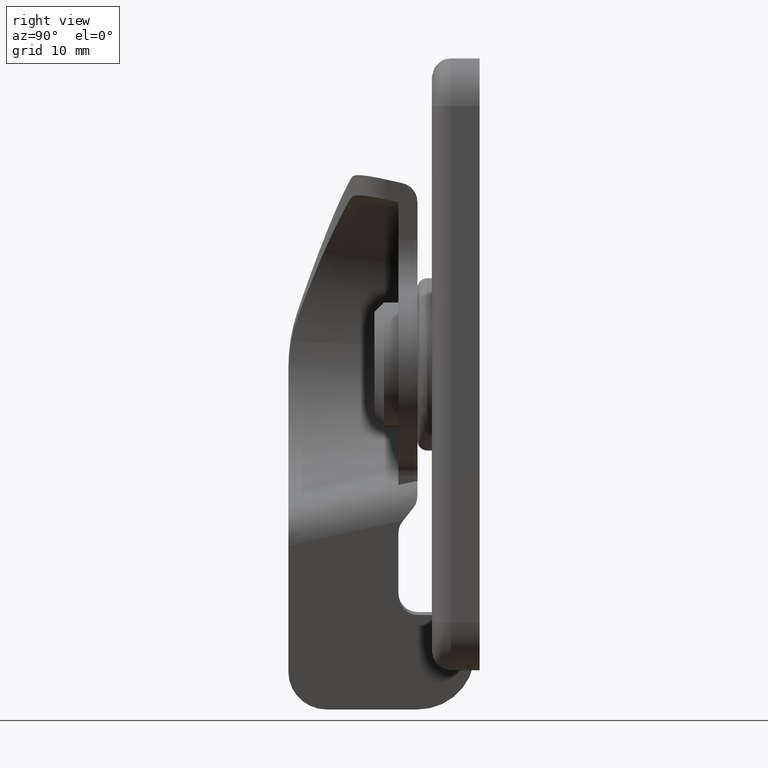
[diagram: clean part render]
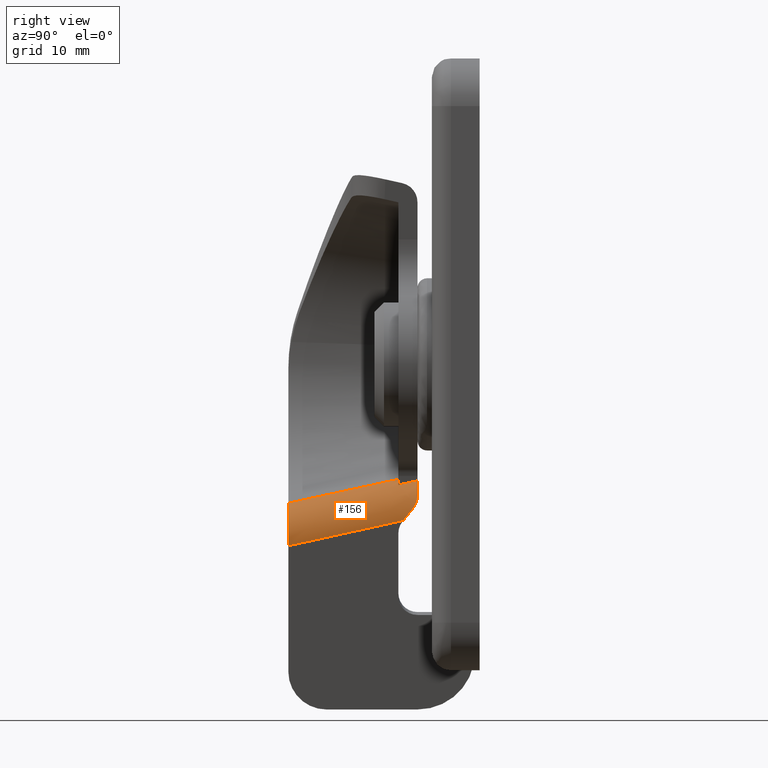
[diagram: same view with one face highlighted and labeled with its STEP entity id]
A machine part, right view. The second image highlights one B-rep face of the part: STEP entity #156.
In plain terms, the highlighted face is a freeform B-spline surface patch.
Its self-contained STEP definition (entity closure, byte-faithful):
#156=ADVANCED_FACE('',(#403),#402,.T.);
#402=( BOUNDED_SURFACE() B_SPLINE_SURFACE( 3,2,((#2292,#2293,#2294),(#2295,#2296,#2297),(#2298,#2299,#2300),(#2301,#2302,#2303)), .UNSPECIFIED.,.F.,.F.,.F.) B_SPLINE_SURFACE_WITH_KNOTS((4,4),(3,3),(2.18522390722E-02,3.66351371342E-02),(0.00000000000E+00,1.00000000000E+00), .UNSPECIFIED. ) GEOMETRIC_REPRESENTATION_ITEM() RATIONAL_B_SPLINE_SURFACE(((1.00000000000E+00,7.74371180348E-01,1.00000000000E+00),(1.00000000000E+00,7.77805816624E-01,1.00000000000E+00),(1.00000000000E+00,7.81745480770E-01,1.00000000000E+00),(1.00000000000E+00,7.86525626340E-01,1.00000000000E+00))) REPRESENTATION_ITEM('') SURFACE() );
#403=FACE_OUTER_BOUND('',#2304,.T.);
#2292=CARTESIAN_POINT('',(-2.49167282029E+01,-1.15855614263E+01,-1.89769414636E+01));
#2293=CARTESIAN_POINT('',(-2.44320225771E+01,-1.22940726829E+01,-1.58233290430E+01));
#2294=CARTESIAN_POINT('',(-2.75010413795E+01,-1.24352800036E+01,-1.47082581364E+01));
#2295=CARTESIAN_POINT('',(-2.47544522168E+01,-6.77510578221E+00,-1.79211345203E+01));
#2296=CARTESIAN_POINT('',(-2.42758561930E+01,-7.49861242157E+00,-1.48072726525E+01));
#2297=CARTESIAN_POINT('',(-2.72980958571E+01,-7.62483110241E+00,-1.36676635875E+01));
#2298=CARTESIAN_POINT('',(-2.45916606743E+01,-1.96538775672E+00,-1.68619732415E+01));
#2299=CARTESIAN_POINT('',(-2.41195322432E+01,-2.68998368206E+00,-1.37901911018E+01));
#2300=CARTESIAN_POINT('',(-2.70884668851E+01,-2.81511329456E+00,-1.26266921270E+01));
#2301=CARTESIAN_POINT('',(-2.44279669890E+01,2.84297842236E+00,-1.57969424030E+01));
#2302=CARTESIAN_POINT('',(-2.39623977062E+01,2.15619569647E+00,-1.27678356737E+01));
#2303=CARTESIAN_POINT('',(-2.68675518695E+01,1.99325984503E+00,-1.15857002996E+01));
#2304=EDGE_LOOP('',(#3927,#3928,#3929,#3930,#3931,#3932,#3933,#3934));
#3927=ORIENTED_EDGE('',*,*,#4832,.T.);
#3928=ORIENTED_EDGE('',*,*,#4833,.T.);
#3929=ORIENTED_EDGE('',*,*,#4834,.T.);
#3930=ORIENTED_EDGE('',*,*,#4835,.T.);
#3931=ORIENTED_EDGE('',*,*,#4836,.T.);
#3932=ORIENTED_EDGE('',*,*,#4837,.T.);
#3933=ORIENTED_EDGE('',*,*,#4820,.F.);
#3934=ORIENTED_EDGE('',*,*,#4831,.F.);
#4820=EDGE_CURVE('',#5381,#5382,#5383,.T.);
#4831=EDGE_CURVE('',#5450,#5381,#5457,.T.);
#4832=EDGE_CURVE('',#5450,#5463,#5464,.T.);
#4833=EDGE_CURVE('',#5463,#5470,#5471,.T.);
#4834=EDGE_CURVE('',#5470,#5477,#5478,.T.);
#4835=EDGE_CURVE('',#5477,#5484,#5485,.T.);
#4836=EDGE_CURVE('',#5484,#5491,#5492,.T.);
#4837=EDGE_CURVE('',#5491,#5382,#5498,.T.);
#5381=VERTEX_POINT('',#8418);
#5382=VERTEX_POINT('',#8419);
#5383=(BOUNDED_CURVE() B_SPLINE_CURVE(3,(#8420,#8421,#8422,#8423),.UNSPECIFIED.,.F.,.F.) B_SPLINE_CURVE_WITH_KNOTS((4,4),(7.19517368246E-04,2.37877741533E-03),.UNSPECIFIED.) CURVE() GEOMETRIC_REPRESENTATION_ITEM() RATIONAL_B_SPLINE_CURVE((1.00000000000E+00,1.00000000000E+00,1.00000000000E+00,1.00000000000E+00)) REPRESENTATION_ITEM('') );
#5450=VERTEX_POINT('',#8484);
#5457=(BOUNDED_CURVE() B_SPLINE_CURVE(3,(#8489,#8490,#8491,#8492,#8493,#8494),.UNSPECIFIED.,.F.,.F.) B_SPLINE_CURVE_WITH_KNOTS((4,2,4),(0.00000000000E+00,7.32041906757E-04,1.46408381351E-03),.UNSPECIFIED.) CURVE() GEOMETRIC_REPRESENTATION_ITEM() RATIONAL_B_SPLINE_CURVE((1.00000000000E+00,1.00000000000E+00,1.00000000000E+00,1.00000000000E+00,1.00000000000E+00,1.00000000000E+00)) REPRESENTATION_ITEM('') );
#5463=VERTEX_POINT('',#8495);
#5464=(BOUNDED_CURVE() B_SPLINE_CURVE(3,(#8496,#8497,#8498,#8499,#8500,#8501,#8502,#8503),.UNSPECIFIED.,.F.,.F.) B_SPLINE_CURVE_WITH_KNOTS((4,2,2,4),(7.43523292652E-04,1.21947824087E-03,1.69543318910E-03,2.64734308554E-03),.UNSPECIFIED.) CURVE() GEOMETRIC_REPRESENTATION_ITEM() RATIONAL_B_SPLINE_CURVE((1.00000000000E+00,1.00000000000E+00,1.00000000000E+00,1.00000000000E+00,1.00000000000E+00,1.00000000000E+00,1.00000000000E+00,1.00000000000E+00)) REPRESENTATION_ITEM('') );
#5470=VERTEX_POINT('',#8504);
#5471=(BOUNDED_CURVE() B_SPLINE_CURVE(3,(#8505,#8506,#8507,#8508),.UNSPECIFIED.,.F.,.F.) B_SPLINE_CURVE_WITH_KNOTS((4,4),(0.00000000000E+00,2.04951858154E-03),.UNSPECIFIED.) CURVE() GEOMETRIC_REPRESENTATION_ITEM() RATIONAL_B_SPLINE_CURVE((1.00000000000E+00,1.00000000000E+00,1.00000000000E+00,1.00000000000E+00)) REPRESENTATION_ITEM('') );
#5477=VERTEX_POINT('',#8509);
#5478=(BOUNDED_CURVE() B_SPLINE_CURVE(3,(#8510,#8511,#8512,#8513),.UNSPECIFIED.,.F.,.F.) B_SPLINE_CURVE_WITH_KNOTS((4,4),(0.00000000000E+00,1.16116631251E-03),.UNSPECIFIED.) CURVE() GEOMETRIC_REPRESENTATION_ITEM() RATIONAL_B_SPLINE_CURVE((1.00000000000E+00,1.00000000000E+00,1.00000000000E+00,1.00000000000E+00)) REPRESENTATION_ITEM('') );
#5484=VERTEX_POINT('',#8514);
#5485=(BOUNDED_CURVE() B_SPLINE_CURVE(3,(#8515,#8516,#8517,#8518,#8519,#8520,#8521),.UNSPECIFIED.,.F.,.F.) B_SPLINE_CURVE_WITH_KNOTS((4,3,4),(3.54797417542E-19,4.96071984637E-03,1.17769613605E-02),.UNSPECIFIED.) CURVE() GEOMETRIC_REPRESENTATION_ITEM() RATIONAL_B_SPLINE_CURVE((1.00000000000E+00,1.00000000000E+00,1.00000000000E+00,1.00000000000E+00,1.00000000000E+00,1.00000000000E+00,1.00000000000E+00)) REPRESENTATION_ITEM('') );
#5491=VERTEX_POINT('',#8522);
#5492=(BOUNDED_CURVE() B_SPLINE_CURVE(3,(#8523,#8524,#8525,#8526,#8527,#8528,#8529,#8530,#8531,#8532,#8533,#8534,#8535,#8536),.UNSPECIFIED.,.F.,.F.) B_SPLINE_CURVE_WITH_KNOTS((4,2,2,2,2,2,4),(0.00000000000E+00,1.38110572008E-03,2.07165858012E-03,2.76221144015E-03,3.45276430019E-03,4.14331716023E-03,5.52442288031E-03),.UNSPECIFIED.) CURVE() GEOMETRIC_REPRESENTATION_ITEM() RATIONAL_B_SPLINE_CURVE((1.00000000000E+00,1.00000000000E+00,1.00000000000E+00,1.00000000000E+00,1.00000000000E+00,1.00000000000E+00,1.00000000000E+00,1.00000000000E+00,1.00000000000E+00,1.00000000000E+00,1.00000000000E+00,1.00000000000E+00,1.00000000000E+00,1.00000000000E+00)) REPRESENTATION_ITEM('') );
#5498=(BOUNDED_CURVE() B_SPLINE_CURVE(3,(#8537,#8538,#8539,#8540,#8541,#8542,#8543,#8544,#8545,#8546),.UNSPECIFIED.,.F.,.F.) B_SPLINE_CURVE_WITH_KNOTS((4,3,3,4),(0.00000000000E+00,7.68943887078E-03,1.17819203992E-02,1.23137550469E-02),.UNSPECIFIED.) CURVE() GEOMETRIC_REPRESENTATION_ITEM() RATIONAL_B_SPLINE_CURVE((1.00000000000E+00,1.00000000000E+00,1.00000000000E+00,1.00000000000E+00,1.00000000000E+00,1.00000000000E+00,1.00000000000E+00,1.00000000000E+00,1.00000000000E+00,1.00000000000E+00)) REPRESENTATION_ITEM('') );
#8418=CARTESIAN_POINT('',(-2.44447875843E+01,1.55719596990E+00,-1.50169186702E+01));
#8419=CARTESIAN_POINT('',(-2.45070093359E+01,5.19013594233E-01,-1.63112110926E+01));
#8420=CARTESIAN_POINT('',(-2.44447875843E+01,1.55719596990E+00,-1.50169186702E+01));
#8421=CARTESIAN_POINT('',(-2.44196719221E+01,1.21485514543E+00,-1.54513584665E+01));
#8422=CARTESIAN_POINT('',(-2.44411293477E+01,8.68532157028E-01,-1.58825799028E+01));
#8423=CARTESIAN_POINT('',(-2.45070093359E+01,5.19013594233E-01,-1.63112110926E+01));
#8484=CARTESIAN_POINT('',(-2.47524483367E+01,2.00000000000E+00,-1.36855357395E+01));
#8489=CARTESIAN_POINT('',(-2.47524483367E+01,2.00000000000E+00,-1.36855357395E+01));
#8490=CARTESIAN_POINT('',(-2.46538044050E+01,2.00000000000E+00,-1.39121394230E+01));
#8491=CARTESIAN_POINT('',(-2.45810068282E+01,1.96902101728E+00,-1.41454669164E+01));
#8492=CARTESIAN_POINT('',(-2.44813434350E+01,1.82278147344E+00,-1.46050782075E+01));
#8493=CARTESIAN_POINT('',(-2.44560176046E+01,1.71026756309E+00,-1.48226666645E+01));
#8494=CARTESIAN_POINT('',(-2.44447875843E+01,1.55719596990E+00,-1.50169186702E+01));
#8495=CARTESIAN_POINT('',(-2.58941528197E+01,2.00000000000E+00,-1.21710123606E+01));
#8496=CARTESIAN_POINT('',(-2.47524483367E+01,2.00000000000E+00,-1.36855357395E+01));
#8497=CARTESIAN_POINT('',(-2.48157777723E+01,2.00000000000E+00,-1.35400561023E+01));
#8498=CARTESIAN_POINT('',(-2.48875459041E+01,2.00000000000E+00,-1.33981151021E+01));
#8499=CARTESIAN_POINT('',(-2.50485315837E+01,2.00000000000E+00,-1.31215502456E+01));
#8500=CARTESIAN_POINT('',(-2.51378587786E+01,2.00000000000E+00,-1.29870579300E+01));
#8501=CARTESIAN_POINT('',(-2.54255219142E+01,2.00000000000E+00,-1.26050796780E+01));
#8502=CARTESIAN_POINT('',(-2.56452199174E+01,2.00000000000E+00,-1.23751196844E+01));
#8503=CARTESIAN_POINT('',(-2.58941528197E+01,2.00000000000E+00,-1.21710123606E+01));
#8504=CARTESIAN_POINT('',(-2.59621804700E+01,0.00000000000E+00,-1.26136167606E+01));
#8505=CARTESIAN_POINT('',(-2.58941528197E+01,2.00000000000E+00,-1.21710123606E+01));
#8506=CARTESIAN_POINT('',(-2.59168460255E+01,1.33335887425E+00,-1.23186598638E+01));
#8507=CARTESIAN_POINT('',(-2.59395214387E+01,6.66691494667E-01,-1.24661916047E+01));
#8508=CARTESIAN_POINT('',(-2.59621804700E+01,-1.23056839217E-15,-1.26136167606E+01));
#8509=CARTESIAN_POINT('',(-2.69584801494E+01,0.00000000000E+00,-1.20172157594E+01));
#8510=CARTESIAN_POINT('',(-2.59621804700E+01,0.00000000000E+00,-1.26136167606E+01));
#8511=CARTESIAN_POINT('',(-2.62647751320E+01,0.00000000000E+00,-1.23655273542E+01));
#8512=CARTESIAN_POINT('',(-2.65967273328E+01,0.00000000000E+00,-1.21664802975E+01));
#8513=CARTESIAN_POINT('',(-2.69584801494E+01,0.00000000000E+00,-1.20172157594E+01));
#8514=CARTESIAN_POINT('',(-2.74614947726E+01,-1.15000000000E+01,-1.45059324019E+01));
#8515=CARTESIAN_POINT('',(-2.69584801494E+01,3.72125711238E-16,-1.20172157594E+01));
#8516=CARTESIAN_POINT('',(-2.70316198231E+01,-1.61455670548E+00,-1.23667323288E+01));
#8517=CARTESIAN_POINT('',(-2.71035511930E+01,-3.22917388138E+00,-1.27162238581E+01));
#8518=CARTESIAN_POINT('',(-2.71744721004E+01,-4.84384332534E+00,-1.30656768749E+01));
#8519=CARTESIAN_POINT('',(-2.72719204552E+01,-7.06246808253E+00,-1.35458402406E+01));
#8520=CARTESIAN_POINT('',(-2.73674642780E+01,-9.28119272681E+00,-1.40259309402E+01));
#8521=CARTESIAN_POINT('',(-2.74614947726E+01,-1.15000000000E+01,-1.45059324019E+01));
#8522=CARTESIAN_POINT('',(-2.49138418129E+01,-1.15000000000E+01,-1.89581619101E+01));
#8523=CARTESIAN_POINT('',(-2.74614947726E+01,-1.15000000000E+01,-1.45059324019E+01));
#8524=CARTESIAN_POINT('',(-2.70243440013E+01,-1.15000000000E+01,-1.46705200055E+01));
#8525=CARTESIAN_POINT('',(-2.66273771170E+01,-1.15000000000E+01,-1.49073324097E+01));
#8526=CARTESIAN_POINT('',(-2.60980501123E+01,-1.15000000000E+01,-1.53640496401E+01));
#8527=CARTESIAN_POINT('',(-2.59372507052E+01,-1.15000000000E+01,-1.55295933109E+01));
#8528=CARTESIAN_POINT('',(-2.56454978401E+01,-1.15000000000E+01,-1.58860651738E+01));
#8529=CARTESIAN_POINT('',(-2.55138182287E+01,-1.15000000000E+01,-1.60783303044E+01));
#8530=CARTESIAN_POINT('',(-2.52849084489E+01,-1.15000000000E+01,-1.64832516897E+01));
#8531=CARTESIAN_POINT('',(-2.51890035202E+01,-1.15000000000E+01,-1.66929945698E+01));
#8532=CARTESIAN_POINT('',(-2.50328483366E+01,-1.15000000000E+01,-1.71264773414E+01));
#8533=CARTESIAN_POINT('',(-2.49723070148E+01,-1.15000000000E+01,-1.73520564825E+01));
#8534=CARTESIAN_POINT('',(-2.48489072197E+01,-1.15000000000E+01,-1.80375917830E+01));
#8535=CARTESIAN_POINT('',(-2.48429286939E+01,-1.15000000000E+01,-1.84967839500E+01));
#8536=CARTESIAN_POINT('',(-2.49138418129E+01,-1.15000000000E+01,-1.89581619101E+01));
#8537=CARTESIAN_POINT('',(-2.49138418129E+01,-1.15000000000E+01,-1.89581619101E+01));
#8538=CARTESIAN_POINT('',(-2.48294293539E+01,-8.99780814520E+00,-1.84089539679E+01));
#8539=CARTESIAN_POINT('',(-2.47448725254E+01,-6.49582700758E+00,-1.78588067231E+01));
#8540=CARTESIAN_POINT('',(-2.46601258335E+01,-3.99412474802E+00,-1.73074241808E+01));
#8541=CARTESIAN_POINT('',(-2.46150218538E+01,-2.66266595985E+00,-1.70139667444E+01));
#8542=CARTESIAN_POINT('',(-2.45698638330E+01,-1.33128642945E+00,-1.67201577028E+01));
#8543=CARTESIAN_POINT('',(-2.45246426143E+01,3.21554530581E-08,-1.64259374808E+01));
#8544=CARTESIAN_POINT('',(-2.45187659325E+01,1.73006139115E-01,-1.63877023626E+01));
#8545=CARTESIAN_POINT('',(-2.45128881806E+01,3.46010671230E-01,-1.63494602823E+01));
#8546=CARTESIAN_POINT('',(-2.45070093359E+01,5.19013594233E-01,-1.63112110926E+01));